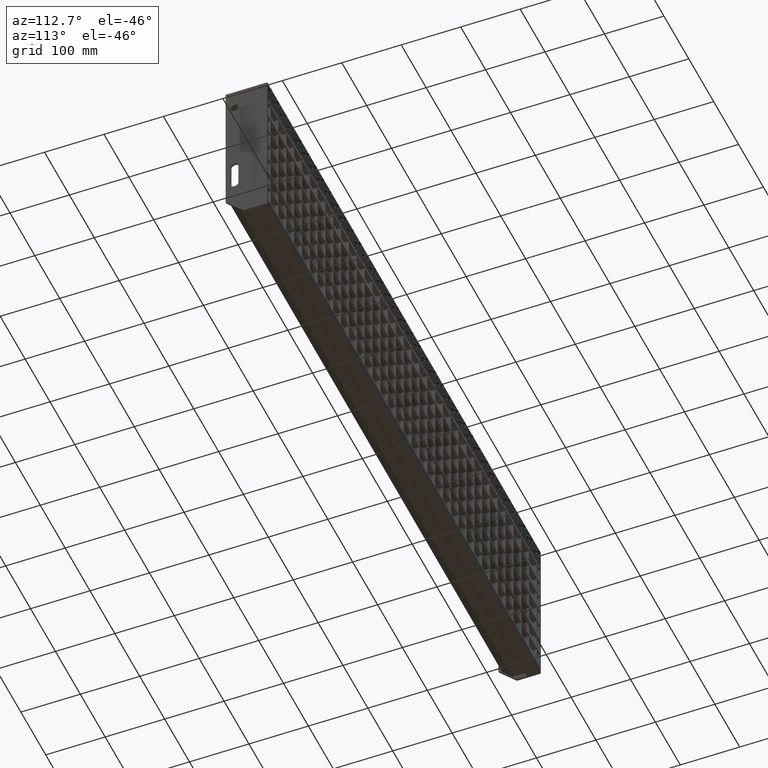
[diagram: clean part render]
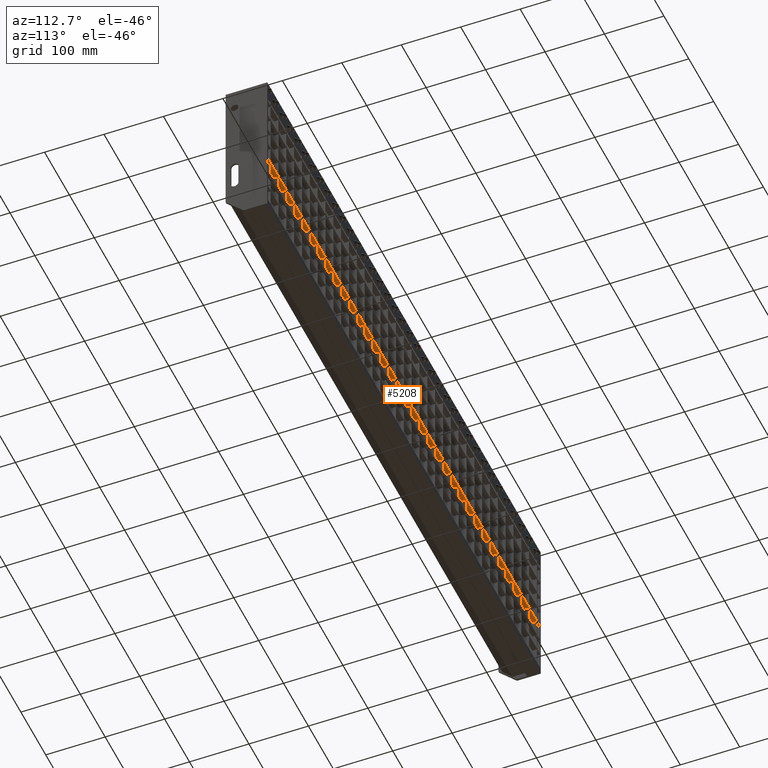
[diagram: same view with one face highlighted and labeled with its STEP entity id]
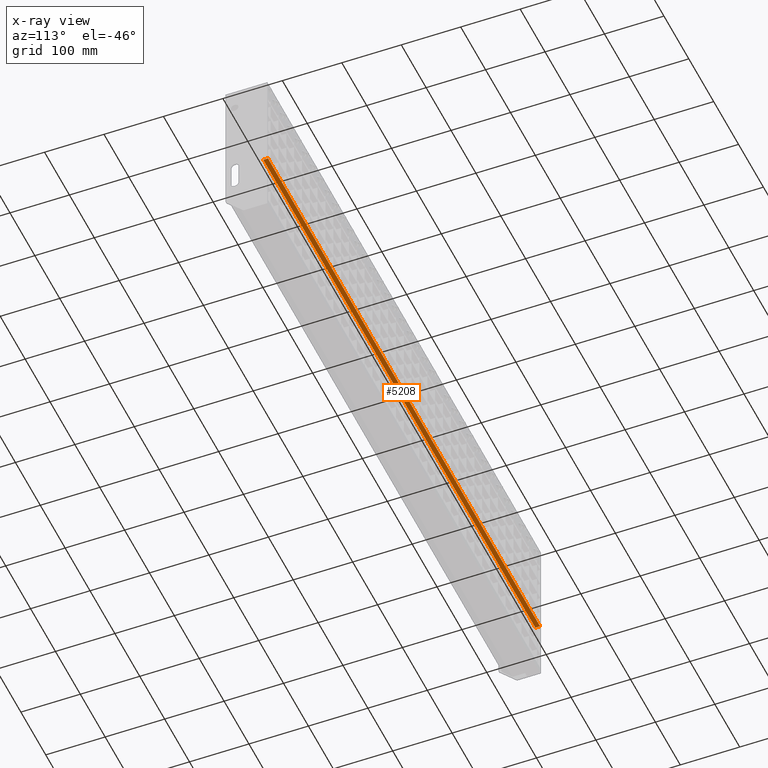
[diagram: x-ray of the same camera — body ghosted, the highlighted face saturated]
A machine part, auxiliary view. The second image highlights one B-rep face of the part: STEP entity #5208.
The next image is the same camera in x-ray: the body ghosted, the highlighted face saturated — about 0% of this face is hidden behind the body in this view.
In plain terms, the highlighted planar face has unit normal (-0, 0, 1).
Its self-contained STEP definition (entity closure, byte-faithful):
#821 = CARTESIAN_POINT ( 'NONE',  ( 555.1394102980499400, 62.00000000000000700, -167.2500000000000000 ) ) ;
#1263 = EDGE_CURVE ( 'NONE', #11824, #3523, #29746, .T. ) ;
#2433 = CARTESIAN_POINT ( 'NONE',  ( 555.1394102980499400, 70.00000000000000000, -167.2500000000000000 ) ) ;
#2755 = CARTESIAN_POINT ( 'NONE',  ( 547.0000000000000000, 70.00000000000000000, -167.2500000000000000 ) ) ;
#3523 = VERTEX_POINT ( 'NONE', #33888 ) ;
#3666 = CARTESIAN_POINT ( 'NONE',  ( 547.0000000000000000, 62.00000000000000700, -167.2500000000000000 ) ) ;
#3824 = LINE ( 'NONE', #821, #10140 ) ;
#4122 = VECTOR ( 'NONE', #10657, 1000.000000000000000 ) ;
#4358 = VERTEX_POINT ( 'NONE', #3666 ) ;
#5208 = ADVANCED_FACE ( 'NONE', ( #18389 ), #10439, .F. ) ;
#8477 = DIRECTION ( 'NONE',  ( 0.0000000000000000000, -1.000000000000000000, 0.0000000000000000000 ) ) ;
#10140 = VECTOR ( 'NONE', #33007, 1000.000000000000000 ) ;
#10439 = PLANE ( 'NONE',  #20467 ) ;
#10657 = DIRECTION ( 'NONE',  ( 0.0000000000000000000, -1.000000000000000000, 0.0000000000000000000 ) ) ;
#11105 = ORIENTED_EDGE ( 'NONE', *, *, #30843, .T. ) ;
#11519 = CARTESIAN_POINT ( 'NONE',  ( -547.0000000000000000, 70.00000000000000000, -167.2500000000000000 ) ) ;
#11824 = VERTEX_POINT ( 'NONE', #11519 ) ;
#12798 = VECTOR ( 'NONE', #32973, 1000.000000000000000 ) ;
#13145 = DIRECTION ( 'NONE',  ( -0.0000000000000000000, 0.0000000000000000000, 1.000000000000000000 ) ) ;
#13314 = ORIENTED_EDGE ( 'NONE', *, *, #34803, .T. ) ;
#13814 = LINE ( 'NONE', #2755, #4122 ) ;
#14058 = LINE ( 'NONE', #30150, #12798 ) ;
#16364 = CARTESIAN_POINT ( 'NONE',  ( -547.0000000000000000, 70.00000000000000000, -167.2500000000000000 ) ) ;
#17021 = EDGE_CURVE ( 'NONE', #20571, #11824, #14058, .T. ) ;
#17877 = ORIENTED_EDGE ( 'NONE', *, *, #17021, .F. ) ;
#18389 = FACE_OUTER_BOUND ( 'NONE', #25655, .T. ) ;
#18493 = VECTOR ( 'NONE', #8477, 1000.000000000000000 ) ;
#18573 = DIRECTION ( 'NONE',  ( 1.000000000000000000, 0.0000000000000000000, 0.0000000000000000000 ) ) ;
#20467 = AXIS2_PLACEMENT_3D ( 'NONE', #2433, #13145, #18573 ) ;
#20571 = VERTEX_POINT ( 'NONE', #28298 ) ;
#25655 = EDGE_LOOP ( 'NONE', ( #17877, #13314, #11105, #30998 ) ) ;
#28298 = CARTESIAN_POINT ( 'NONE',  ( 547.0000000000000000, 70.00000000000000000, -167.2500000000000000 ) ) ;
#29746 = LINE ( 'NONE', #16364, #18493 ) ;
#30150 = CARTESIAN_POINT ( 'NONE',  ( 555.1394102980499400, 70.00000000000000000, -167.2500000000000000 ) ) ;
#30843 = EDGE_CURVE ( 'NONE', #4358, #3523, #3824, .T. ) ;
#30998 = ORIENTED_EDGE ( 'NONE', *, *, #1263, .F. ) ;
#32973 = DIRECTION ( 'NONE',  ( -1.000000000000000000, -0.0000000000000000000, -0.0000000000000000000 ) ) ;
#33007 = DIRECTION ( 'NONE',  ( -1.000000000000000000, -0.0000000000000000000, -0.0000000000000000000 ) ) ;
#33888 = CARTESIAN_POINT ( 'NONE',  ( -547.0000000000000000, 62.00000000000000700, -167.2500000000000000 ) ) ;
#34803 = EDGE_CURVE ( 'NONE', #20571, #4358, #13814, .T. ) ;